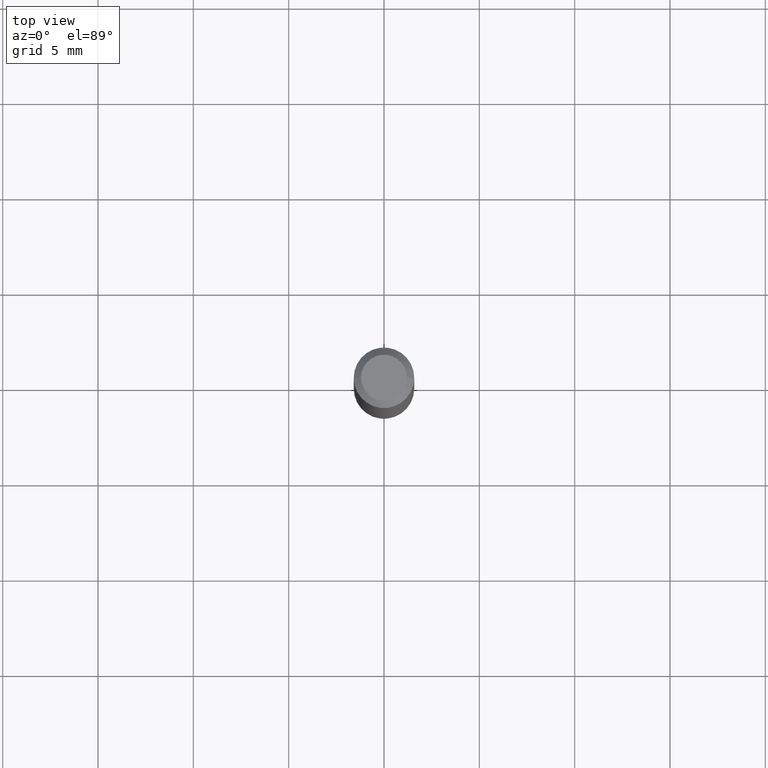
[diagram: clean part render]
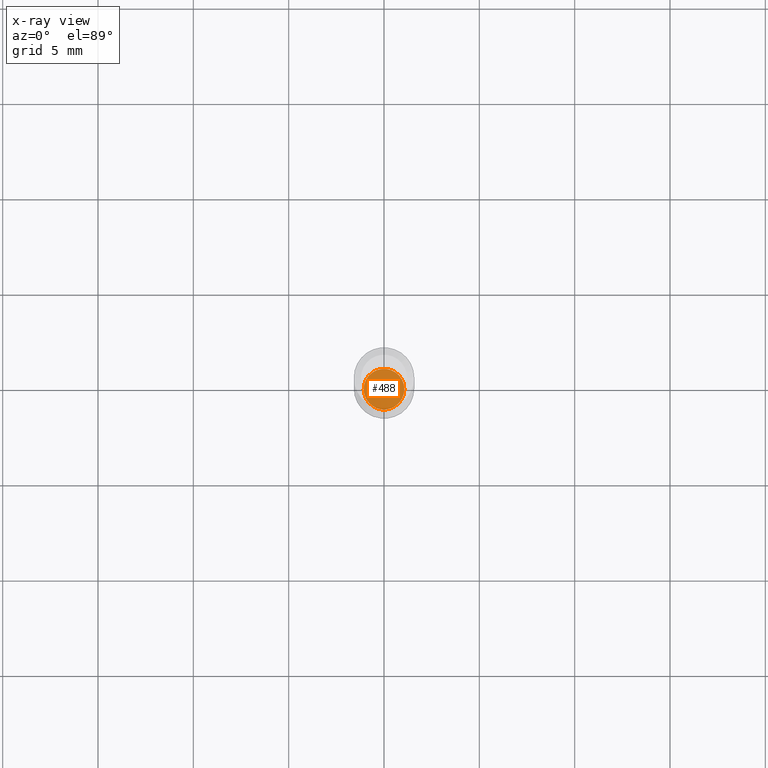
[diagram: x-ray — body ghosted, one internal face saturated and labeled with its STEP entity id]
A machine part, top view, then the same camera in x-ray: the body is ghosted and one INTERNAL B-rep face — a face not visible from any outside direction — is saturated and labeled: STEP entity #488.
In plain terms, the highlighted planar face has unit normal (-0, 0, 1).
Its self-contained STEP definition (entity closure, byte-faithful):
#8 = AXIS2_PLACEMENT_3D ( 'NONE', #168, #364, #315 ) ;
#14 = AXIS2_PLACEMENT_3D ( 'NONE', #197, #355, #515 ) ;
#21 = CIRCLE ( 'NONE', #310, 0.04200000000000001649 ) ;
#31 = VERTEX_POINT ( 'NONE', #421 ) ;
#57 = CIRCLE ( 'NONE', #14, 0.04200000000000001649 ) ;
#83 = EDGE_CURVE ( 'NONE', #31, #126, #21, .T. ) ;
#119 = FACE_OUTER_BOUND ( 'NONE', #408, .T. ) ;
#126 = VERTEX_POINT ( 'NONE', #518 ) ;
#132 = ORIENTED_EDGE ( 'NONE', *, *, #83, .F. ) ;
#159 = PLANE ( 'NONE',  #8 ) ;
#168 = CARTESIAN_POINT ( 'NONE',  ( 3.355183202086007133E-29, -4.790312396892795908E-15, -1.372000000000000108 ) ) ;
#196 = EDGE_CURVE ( 'NONE', #126, #31, #57, .T. ) ;
#197 = CARTESIAN_POINT ( 'NONE',  ( 3.355183202086007133E-29, -4.790312396892795908E-15, -1.372000000000000108 ) ) ;
#277 = DIRECTION ( 'NONE',  ( -2.445468806185136597E-29, 3.491481338843145583E-15, 1.000000000000000000 ) ) ;
#290 = ORIENTED_EDGE ( 'NONE', *, *, #196, .F. ) ;
#310 = AXIS2_PLACEMENT_3D ( 'NONE', #502, #277, #390 ) ;
#315 = DIRECTION ( 'NONE',  ( 1.000000000000000000, -6.982962677686265922E-15, 4.876176775795935793E-29 ) ) ;
#355 = DIRECTION ( 'NONE',  ( -2.445468806185136597E-29, 3.491481338843145583E-15, 1.000000000000000000 ) ) ;
#364 = DIRECTION ( 'NONE',  ( -2.438088387897960049E-29, 3.491481338843145188E-15, 1.000000000000000000 ) ) ;
#390 = DIRECTION ( 'NONE',  ( 1.000000000000000000, -6.982962677686260400E-15, 0.000000000000000000 ) ) ;
#408 = EDGE_LOOP ( 'NONE', ( #132, #290 ) ) ;
#421 = CARTESIAN_POINT ( 'NONE',  ( 0.04200000000000001649, -5.083596829355619552E-15, -1.372000000000000108 ) ) ;
#488 = ADVANCED_FACE ( 'NONE', ( #119 ), #159, .F. ) ;
#502 = CARTESIAN_POINT ( 'NONE',  ( 3.355183202086007133E-29, -4.790312396892795908E-15, -1.372000000000000108 ) ) ;
#515 = DIRECTION ( 'NONE',  ( 1.000000000000000000, -6.982962677686260400E-15, 0.000000000000000000 ) ) ;
#518 = CARTESIAN_POINT ( 'NONE',  ( -0.04200000000000001649, -4.489235220699443153E-15, -1.372000000000000108 ) ) ;